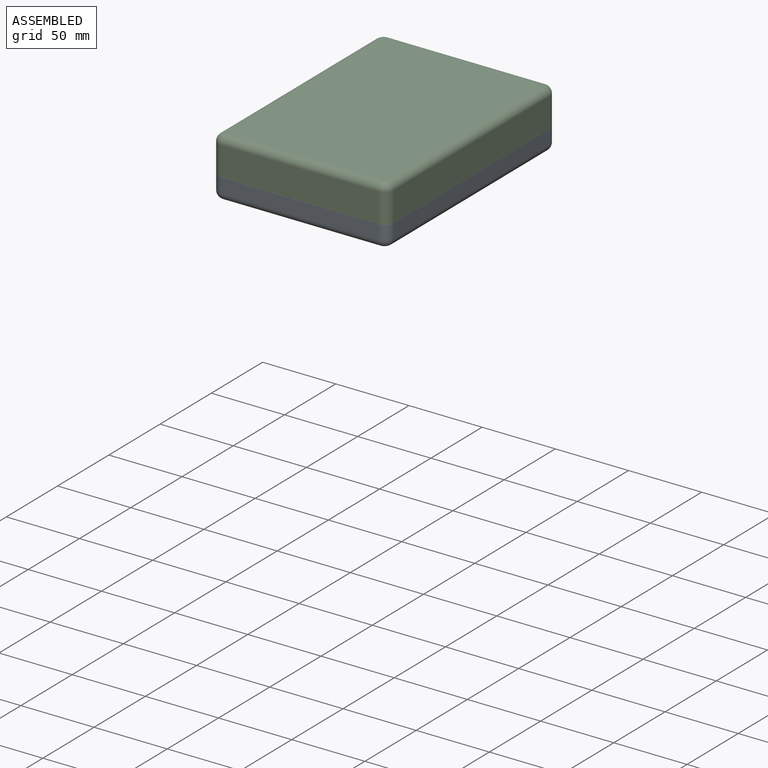
[diagram: assembled view]
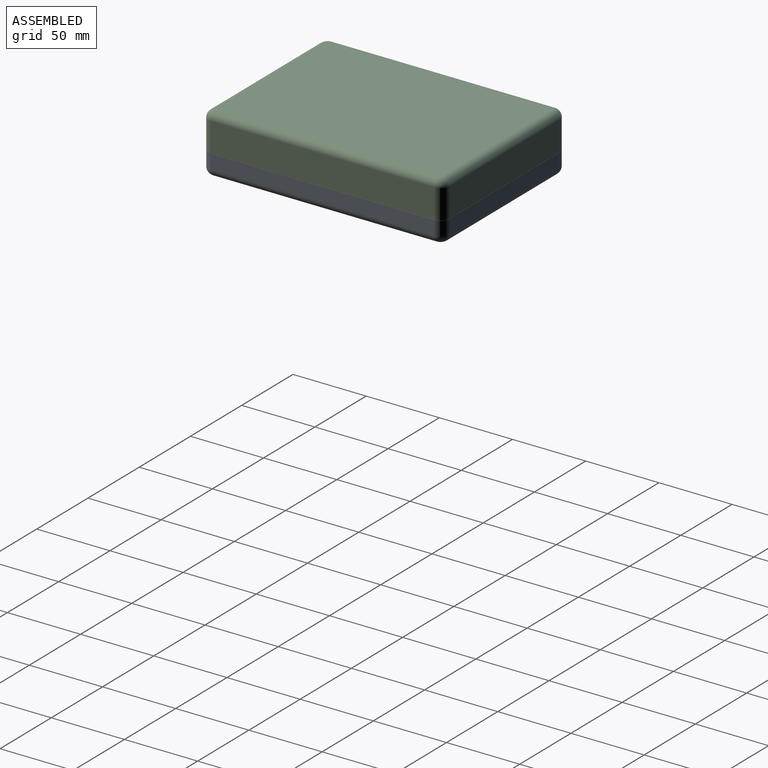
[diagram: assembled view, second angle]
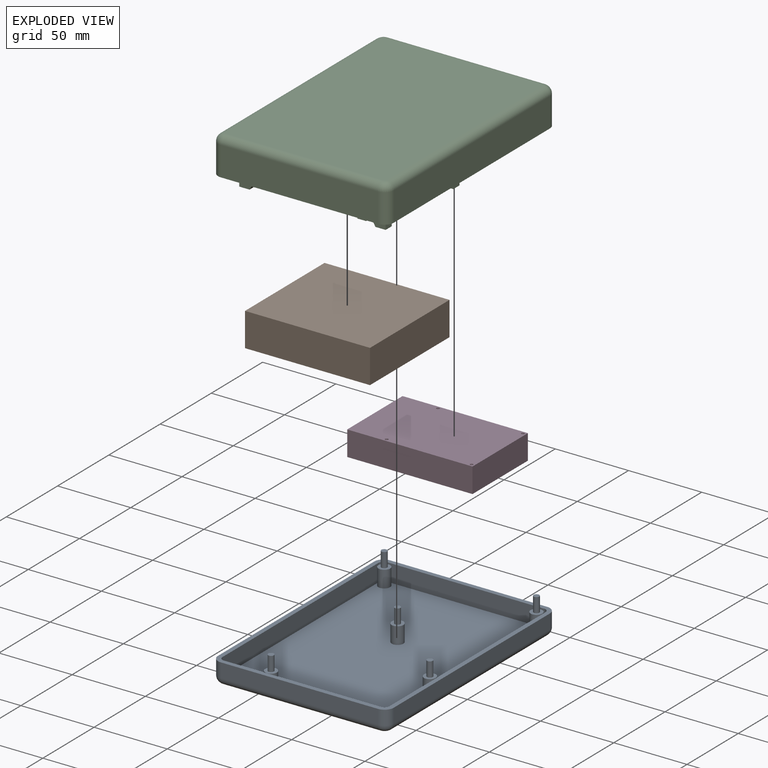
[diagram: exploded view]
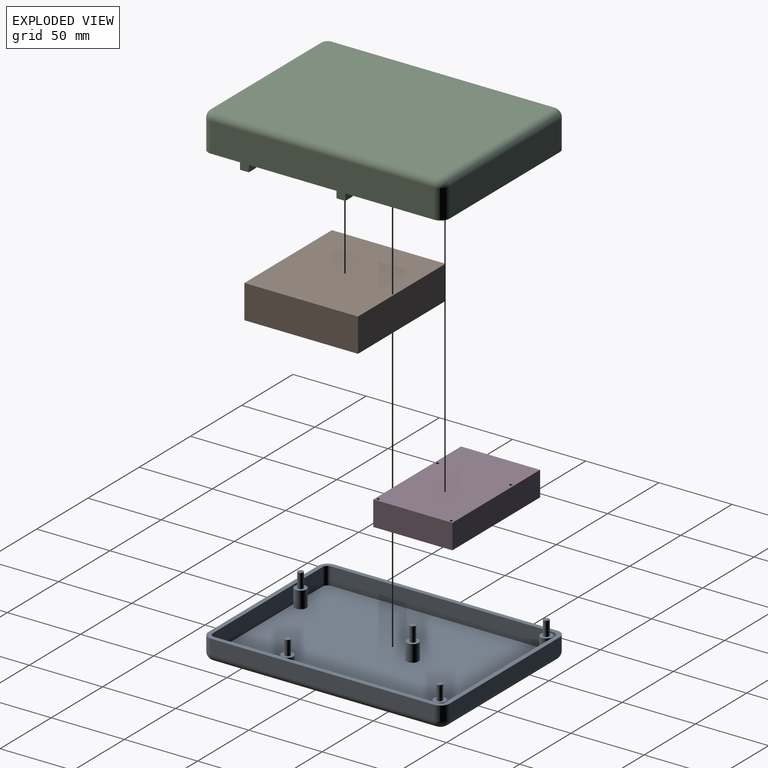
[diagram: exploded view, second angle]
ASSEMBLY  parts=4 mates=6
PART A: 47 faces, bbox 165x120x24.5 mm
  f0: plane 107.3x9.92mm, normal (1,0,0), area 1064.4mm2, adj f1,f7,f8,f25
  f1: cylinder r=6.35mm len=9.92mm, axis (0,0,-1), area 98.9mm2, adj f0,f2,f8,f23
  f2: plane 152.3x9.92mm, normal (0,1,0), area 1510.8mm2, adj f1,f3,f8,f21
  f3: cylinder r=6.35mm len=9.92mm, axis (0,0,-1), area 98.9mm2, adj f2,f4,f8,f19
  f4: plane 107.3x9.92mm, normal (-1,0,0), area 1064.4mm2, adj f3,f5,f8,f20
  f5: cylinder r=6.35mm len=9.92mm, axis (0,0,-1), area 98.9mm2, adj f4,f6,f8,f22
  f6: plane 152.3x9.92mm, normal (0,-1,0), area 1510.8mm2, adj f5,f7,f8,f24
  f7: cylinder r=6.35mm len=9.92mm, axis (0,0,-1), area 98.9mm2, adj f0,f6,f8,f26
  f8: plane 165x120mm, normal (0,0,1), area 1649mm2, adj f0,f1,f2,f3,f4,f5,f6,f7
  f9: plane 154.84x109.84mm, normal (0,0,-1), area 17006.2mm2, adj f19,f20,f21,f22,f23,f24,f25,f26
  f10: plane 107.3x12mm, normal (-1,0,0), area 1287.6mm2, adj f8,f11,f17,f18
  f11: cylinder r=3.35mm len=12mm, axis (0,0,-1), area 63.1mm2, adj f8,f10,f12,f18
  f12: plane 152.3x12mm, normal (0,-1,0), area 1827.6mm2, adj f8,f11,f13,f18
  f13: cylinder r=3.35mm len=12mm, axis (0,0,-1), area 63.1mm2, adj f8,f12,f14,f18
  f14: plane 107.3x12mm, normal (1,0,0), area 1287.6mm2, adj f8,f13,f15,f18
  f15: cylinder r=3.35mm len=12mm, axis (0,0,-1), area 63.1mm2, adj f8,f14,f16,f18
  f16: plane 152.3x12mm, normal (0,1,0), area 1827.6mm2, adj f8,f15,f17,f18
  f17: cylinder r=3.35mm len=12mm, axis (0,0,-1), area 63.1mm2, adj f8,f10,f16,f18
  f18: plane 159x114mm, normal (0,0,1), area 17865mm2, adj f10,f11,f12,f13,f14,f15,f16,f17
  f19: torus R=1.27mm, axis (0,0,1), area 56.5mm2, adj f3,f9,f20,f21
  f20: cylinder r=5.08mm len=107.3mm, axis (0,-1,0), area 856.2mm2, adj f4,f9,f19,f22
  f21: cylinder r=5.08mm len=152.3mm, axis (-1,0,0), area 1215.3mm2, adj f2,f9,f19,f23
  f22: torus R=1.27mm, axis (0,0,1), area 56.5mm2, adj f5,f9,f20,f24
  f23: torus R=1.27mm, axis (0,0,1), area 56.5mm2, adj f1,f9,f21,f25
  f24: cylinder r=5.08mm len=152.3mm, axis (1,0,0), area 1215.3mm2, adj f6,f9,f22,f26
  f25: cylinder r=5.08mm len=107.3mm, axis (0,1,0), area 856.2mm2, adj f0,f9,f23,f26
  f26: torus R=1.27mm, axis (0,0,1), area 56.5mm2, adj f7,f9,f24,f25
  f27: cylinder r=4mm len=11.5mm, axis (0,0,-1), area 289mm2, adj f18,f28
  f28: plane 8x8mm, normal (0,0,1), area 38.3mm2, adj f27,f37
  f29: cylinder r=4mm len=11.5mm, axis (0,0,-1), area 289mm2, adj f18,f30
  f30: plane 8x8mm, normal (0,0,1), area 38.3mm2, adj f29,f41
  f31: cylinder r=4mm len=11.5mm, axis (0,0,-1), area 289mm2, adj f18,f32
  f32: plane 8x8mm, normal (0,0,1), area 38.3mm2, adj f31,f39
  f33: cylinder r=4mm len=11.5mm, axis (0,0,-1), area 289mm2, adj f18,f34
  f34: plane 8x8mm, normal (0,0,1), area 38.3mm2, adj f33,f45
  f35: cylinder r=4mm len=11.5mm, axis (0,0,-1), area 289mm2, adj f18,f36
  f36: plane 8x8mm, normal (0,0,1), area 38.3mm2, adj f35,f43
  f37: cylinder r=1.95mm len=10mm, axis (0,0,-1), area 122.5mm2, adj f28,f38
  f38: plane 3.9x3.9mm, normal (0,0,1), area 11.9mm2, adj f37
  f39: cylinder r=1.95mm len=10mm, axis (0,0,-1), area 122.5mm2, adj f32,f40
  f40: plane 3.9x3.9mm, normal (0,0,1), area 11.9mm2, adj f39
  f41: cylinder r=1.95mm len=10mm, axis (0,0,-1), area 122.5mm2, adj f30,f42
  f42: plane 3.9x3.9mm, normal (0,0,1), area 11.9mm2, adj f41
  f43: cylinder r=1.95mm len=10mm, axis (0,0,-1), area 122.5mm2, adj f36,f44
  f44: plane 3.9x3.9mm, normal (0,0,1), area 11.9mm2, adj f43
  f45: cylinder r=1.95mm len=10mm, axis (0,0,-1), area 122.5mm2, adj f34,f46
  f46: plane 3.9x3.9mm, normal (0,0,1), area 11.9mm2, adj f45
PART B: 6 faces, bbox 77.6x85.4x23 mm
  f0: plane 85.4x23mm, normal (-1,0,0), area 1964.2mm2, adj f1,f3,f4,f5
  f1: plane 77.6x23mm, normal (0,-1,0), area 1784.8mm2, adj f0,f2,f4,f5
  f2: plane 85.4x23mm, normal (1,0,0), area 1964.2mm2, adj f1,f3,f4,f5
  f3: plane 77.6x23mm, normal (0,1,0), area 1784.8mm2, adj f0,f2,f4,f5
  f4: plane 85.4x77.6mm, normal (0,0,1), area 6627mm2, adj f0,f1,f2,f3
  f5: plane 85.4x77.6mm, normal (0,0,-1), area 6627mm2, adj f0,f1,f2,f3
PART C: 147 faces, bbox 165x120x37 mm
  f0: plane 159x114mm, normal (0,0,1), area 15865mm2, adj f17,f18,f19,f20,f21,f22,f23,f24
  f1: plane 20x20mm, normal (0,0,1), area 340mm2, adj f33,f34,f35,f36,f52,f53,f54,f82
  f2: plane 6x4mm, normal (0,0,-1), area 24mm2, adj f74,f79,f80,f81
  f3: plane 6x4mm, normal (0,0,-1), area 24mm2, adj f66,f71,f72,f73
  f4: plane 20x20mm, normal (0,0,1), area 340mm2, adj f37,f38,f39,f40,f48,f49,f50,f66
  f5: plane 20x20mm, normal (0,0,1), area 340mm2, adj f29,f30,f31,f32,f45,f46,f47,f56
  f6: plane 20x20mm, normal (0,0,1), area 340mm2, adj f25,f26,f27,f28,f41,f42,f43,f74
  f7: plane 165x120mm, normal (0,0,1), area 1649mm2, adj f8,f9,f10,f11,f12,f13,f14,f15
  f8: plane 107.3x20mm, normal (-1,0,0), area 2146mm2, adj f7,f9,f15,f142
  f9: cylinder r=6.35mm len=20mm, axis (0,0,-1), area 199.5mm2, adj f7,f8,f10,f140
  f10: plane 152.3x20mm, normal (0,-1,0), area 3046mm2, adj f7,f9,f11,f139
  f11: cylinder r=6.35mm len=20mm, axis (0,0,-1), area 199.5mm2, adj f7,f10,f12,f141
  f12: plane 107.3x20mm, normal (1,0,0), area 2146mm2, adj f7,f11,f13,f143
  f13: cylinder r=6.35mm len=20mm, axis (0,0,-1), area 199.5mm2, adj f7,f12,f14,f145
  f14: plane 152.3x20mm, normal (0,1,0), area 3046mm2, adj f7,f13,f15,f146
  f15: cylinder r=6.35mm len=20mm, axis (0,0,-1), area 199.5mm2, adj f7,f8,f14,f144
  f16: plane 155x110mm, normal (0,0,-1), area 17048.4mm2, adj f139,f140,f141,f142,f143,f144,f145,f146
  f17: plane 107.3x22mm, normal (1,0,0), area 2360.6mm2, adj f0,f7,f18,f24
  f18: cylinder r=3.35mm len=22mm, axis (0,0,-1), area 115.8mm2, adj f0,f7,f17,f19
  f19: plane 152.3x22mm, normal (0,1,0), area 3350.6mm2, adj f0,f7,f18,f20
  f20: cylinder r=3.35mm len=22mm, axis (0,0,-1), area 115.8mm2, adj f0,f7,f19,f21
  f21: plane 107.3x22mm, normal (-1,0,0), area 2360.6mm2, adj f0,f7,f20,f22
  f22: cylinder r=3.35mm len=22mm, axis (0,0,-1), area 115.8mm2, adj f0,f7,f21,f23
  f23: plane 152.3x22mm, normal (0,-1,0), area 3350.6mm2, adj f0,f7,f22,f24
  f24: cylinder r=3.35mm len=22mm, axis (0,0,-1), area 115.8mm2, adj f0,f7,f17,f23
  f25: plane 27x20mm, normal (1,0,0), area 218mm2, adj f0,f6,f26,f28,f41,f43,f44
  f26: plane 20x4mm, normal (0,1,0), area 80mm2, adj f0,f6,f25,f27
  f27: plane 20x4mm, normal (-1,0,0), area 80mm2, adj f0,f6,f26,f28
  f28: plane 20x4mm, normal (0,-1,0), area 80mm2, adj f0,f6,f25,f27
  f29: plane 20x4mm, normal (0,-1,0), area 80mm2, adj f0,f5,f30,f32
  f30: plane 20x4mm, normal (1,0,0), area 80mm2, adj f0,f5,f29,f31
  f31: plane 20x4mm, normal (0,1,0), area 80mm2, adj f0,f5,f30,f32
  f32: plane 27x20mm, normal (-1,0,0), area 218mm2, adj f0,f5,f29,f31,f45,f47,f65
  f33: plane 20x4mm, normal (0,-1,0), area 80mm2, adj f0,f1,f34,f36
  f34: plane 27x20mm, normal (1,0,0), area 218mm2, adj f0,f1,f33,f35,f52,f54,f55
  f35: plane 20x4mm, normal (0,1,0), area 80mm2, adj f0,f1,f34,f36
  f36: plane 20x4mm, normal (-1,0,0), area 80mm2, adj f0,f1,f33,f35
  f37: plane 27x20mm, normal (-1,0,0), area 218mm2, adj f0,f4,f38,f40,f48,f50,f51
  f38: plane 20x4mm, normal (0,-1,0), area 80mm2, adj f0,f4,f37,f39
  f39: plane 20x4mm, normal (1,0,0), area 80mm2, adj f0,f4,f38,f40
  f40: plane 20x4mm, normal (0,1,0), area 80mm2, adj f0,f4,f37,f39
  f41: plane 23x6mm, normal (0,1,0), area 138mm2, adj f6,f25,f42,f44
  f42: plane 23x6mm, normal (-1,0,0), area 138mm2, adj f6,f41,f43,f44
  f43: plane 23x6mm, normal (0,-1,0), area 138mm2, adj f6,f25,f42,f44
  f44: plane 6x6mm, normal (0,0,1), area 36mm2, adj f25,f41,f42,f43
  f45: plane 23x6mm, normal (0,-1,0), area 138mm2, adj f5,f32,f46,f65
  f46: plane 23x6mm, normal (1,0,0), area 138mm2, adj f5,f45,f47,f65
  f47: plane 23x6mm, normal (0,1,0), area 138mm2, adj f5,f32,f46,f65
  f48: plane 23x6mm, normal (0,-1,0), area 138mm2, adj f4,f37,f49,f51
  f49: plane 23x6mm, normal (1,0,0), area 138mm2, adj f4,f48,f50,f51
  f50: plane 23x6mm, normal (0,1,0), area 138mm2, adj f4,f37,f49,f51
  f51: plane 6x6mm, normal (0,0,1), area 36mm2, adj f37,f48,f49,f50
  f52: plane 23x6mm, normal (0,1,0), area 138mm2, adj f1,f34,f53,f55
  f53: plane 23x6mm, normal (-1,0,0), area 138mm2, adj f1,f52,f54,f55
  f54: plane 23x6mm, normal (0,-1,0), area 138mm2, adj f1,f34,f53,f55
  f55: plane 6x6mm, normal (0,0,1), area 36mm2, adj f34,f52,f53,f54
  f56: plane 6x3mm, normal (0,0.83,-0.55), area 21.6mm2, adj f5,f57,f63,f64
  f57: plane 27x6mm, normal (0,1,0), area 162mm2, adj f56,f58,f63,f64
  f58: plane 7x6mm, normal (0,0,1), area 42mm2, adj f57,f59,f63,f64
  f59: plane 6x5mm, normal (0,-0.86,0.51), area 35mm2, adj f58,f60,f63,f64
  f60: plane 6x2mm, normal (0,-1,0), area 12mm2, adj f59,f61,f63,f64
  f61: plane 6x4mm, normal (0,0,-1), area 24mm2, adj f60,f62,f63,f64
  f62: plane 23x6mm, normal (0,-1,0), area 138mm2, adj f5,f61,f63,f64
  f63: plane 30x10mm, normal (1,0,0), area 197.5mm2, adj f5,f56,f57,f58,f59,f60,f61,f62
  f64: plane 30x10mm, normal (-1,0,0), area 197.5mm2, adj f5,f56,f57,f58,f59,f60,f61,f62
  f65: plane 6x6mm, normal (0,0,1), area 36mm2, adj f32,f45,f46,f47
  f66: plane 23x6mm, normal (0,1,0), area 138mm2, adj f3,f4,f72,f73
  f67: plane 6x3mm, normal (0,-0.83,-0.55), area 21.6mm2, adj f4,f68,f72,f73
  f68: plane 27x6mm, normal (0,-1,0), area 162mm2, adj f67,f69,f72,f73
  f69: plane 7x6mm, normal (0,0,1), area 42mm2, adj f68,f70,f72,f73
  f70: plane 6x5mm, normal (0,0.86,0.51), area 35mm2, adj f69,f71,f72,f73
  f71: plane 6x2mm, normal (0,1,0), area 12mm2, adj f3,f70,f72,f73
  f72: plane 30x10mm, normal (1,0,0), area 197.5mm2, adj f3,f4,f66,f67,f68,f69,f70,f71
  f73: plane 30x10mm, normal (-1,0,0), area 197.5mm2, adj f3,f4,f66,f67,f68,f69,f70,f71
  f74: plane 23x6mm, normal (0,-1,0), area 138mm2, adj f2,f6,f80,f81
  f75: plane 6x3mm, normal (0,0.83,-0.55), area 21.6mm2, adj f6,f76,f80,f81
  f76: plane 27x6mm, normal (0,1,0), area 162mm2, adj f75,f77,f80,f81
  f77: plane 7x6mm, normal (0,0,1), area 42mm2, adj f76,f78,f80,f81
  f78: plane 6x5mm, normal (0,-0.86,0.51), area 35mm2, adj f77,f79,f80,f81
  f79: plane 6x2mm, normal (0,-1,0), area 12mm2, adj f2,f78,f80,f81
  f80: plane 30x10mm, normal (-1,0,0), area 197.5mm2, adj f2,f6,f74,f75,f76,f77,f78,f79
  f81: plane 30x10mm, normal (1,0,0), area 197.5mm2, adj f2,f6,f74,f75,f76,f77,f78,f79
  f82: plane 6x3mm, normal (0,-0.83,-0.55), area 21.6mm2, adj f1,f83,f89,f90
  f83: plane 27x6mm, normal (0,-1,0), area 162mm2, adj f82,f84,f89,f90
  f84: plane 7x6mm, normal (0,0,1), area 42mm2, adj f83,f85,f89,f90
  f85: plane 6x5mm, normal (0,0.86,0.51), area 35mm2, adj f84,f86,f89,f90
  f86: plane 6x2mm, normal (0,1,0), area 12mm2, adj f85,f87,f89,f90
  f87: plane 6x4mm, normal (0,0,-1), area 24mm2, adj f86,f88,f89,f90
  f88: plane 23x6mm, normal (0,1,0), area 138mm2, adj f1,f87,f89,f90
  f89: plane 30x10mm, normal (1,0,0), area 197.5mm2, adj f1,f82,f83,f84,f85,f86,f87,f88
  f90: plane 30x10mm, normal (-1,0,0), area 197.5mm2, adj f1,f82,f83,f84,f85,f86,f87,f88
  f91: cylinder r=4mm len=22mm, axis (0,0,1), area 552.9mm2, adj f0,f92
  f92: plane 8x8mm, normal (0,0,1), area 37.7mm2, adj f91,f108
  f93: cylinder r=4mm len=22mm, axis (0,0,1), area 552.9mm2, adj f0,f94
  f94: plane 8x8mm, normal (0,0,1), area 37.7mm2, adj f93,f110
  f95: cylinder r=4mm len=22mm, axis (0,0,1), area 552.9mm2, adj f0,f96
  f96: plane 8x8mm, normal (0,0,1), area 37.7mm2, adj f95,f102
  f97: cylinder r=4mm len=22mm, axis (0,0,1), area 552.9mm2, adj f0,f98
  f98: plane 8x8mm, normal (0,0,1), area 37.7mm2, adj f97,f104
  f99: cylinder r=4mm len=22mm, axis (0,0,1), area 552.9mm2, adj f0,f100
  f100: plane 8x8mm, normal (0,0,1), area 37.7mm2, adj f99,f106
  f101: cone r=0mm half-angle=59deg, axis (0,0,1), area 14.7mm2, adj f102
  f102: cylinder r=2mm len=10mm, axis (0,0,1), area 125.7mm2, adj f96,f101
  f103: cone r=0mm half-angle=59deg, axis (0,0,1), area 14.7mm2, adj f104
  f104: cylinder r=2mm len=10mm, axis (0,0,1), area 125.7mm2, adj f98,f103
  f105: cone r=0mm half-angle=59deg, axis (0,0,1), area 14.7mm2, adj f106
  f106: cylinder r=2mm len=10mm, axis (0,0,1), area 125.7mm2, adj f100,f105
  f107: cone r=0mm half-angle=59deg, axis (0,0,1), area 14.7mm2, adj f108
  f108: cylinder r=2mm len=10mm, axis (0,0,1), area 125.7mm2, adj f92,f107
  f109: cone r=0mm half-angle=59deg, axis (0,0,1), area 14.7mm2, adj f110
  f110: cylinder r=2mm len=10mm, axis (0,0,1), area 125.7mm2, adj f94,f109
  f111: plane 10x7mm, normal (0,1,0), area 70mm2, adj f0,f112,f114,f115
  f112: plane 10x7mm, normal (-1,0,0), area 70mm2, adj f0,f111,f113,f115
  f113: plane 10x7mm, normal (0,-1,0), area 70mm2, adj f0,f112,f114,f115
  f114: plane 10x7mm, normal (1,0,0), area 70mm2, adj f0,f111,f113,f115
  f115: plane 10x10mm, normal (0,0,1), area 97.2mm2, adj f111,f112,f113,f114,f131
  f116: plane 10x7mm, normal (1,0,0), area 70mm2, adj f0,f117,f119,f120
  f117: plane 10x7mm, normal (0,1,0), area 70mm2, adj f0,f116,f118,f120
  f118: plane 10x7mm, normal (-1,0,0), area 70mm2, adj f0,f117,f119,f120
  f119: plane 10x7mm, normal (0,-1,0), area 70mm2, adj f0,f116,f118,f120
  f120: plane 10x10mm, normal (0,0,1), area 97.2mm2, adj f116,f117,f118,f119,f137
  f121: plane 10x7mm, normal (-1,0,0), area 70mm2, adj f0,f122,f124,f125
  f122: plane 10x7mm, normal (0,-1,0), area 70mm2, adj f0,f121,f123,f125
  f123: plane 10x7mm, normal (1,0,0), area 70mm2, adj f0,f122,f124,f125
  f124: plane 10x7mm, normal (0,1,0), area 70mm2, adj f0,f121,f123,f125
  f125: plane 10x10mm, normal (0,0,1), area 97.2mm2, adj f121,f122,f123,f124,f133
  f126: plane 10x7mm, normal (0,-1,0), area 70mm2, adj f0,f127,f129,f130
  f127: plane 10x7mm, normal (1,0,0), area 70mm2, adj f0,f126,f128,f130
  f128: plane 10x7mm, normal (0,1,0), area 70mm2, adj f0,f127,f129,f130
  f129: plane 10x7mm, normal (-1,0,0), area 70mm2, adj f0,f126,f128,f130
  f130: plane 10x10mm, normal (0,0,1), area 97.2mm2, adj f126,f127,f128,f129,f135
  f131: cylinder r=0.95mm len=5mm, axis (0,0,-1), area 29.8mm2, adj f115,f132
  f132: plane 1.9x1.9mm, normal (0,0,1), area 2.8mm2, adj f131
  f133: cylinder r=0.95mm len=5mm, axis (0,0,-1), area 29.8mm2, adj f125,f134
  f134: plane 1.9x1.9mm, normal (0,0,1), area 2.8mm2, adj f133
  f135: cylinder r=0.95mm len=5mm, axis (0,0,-1), area 29.8mm2, adj f130,f136
  f136: plane 1.9x1.9mm, normal (0,0,1), area 2.8mm2, adj f135
  f137: cylinder r=0.95mm len=5mm, axis (0,0,-1), area 29.8mm2, adj f120,f138
  f138: plane 1.9x1.9mm, normal (0,0,1), area 2.8mm2, adj f137
  f139: cylinder r=5mm len=152.3mm, axis (1,0,0), area 1196.2mm2, adj f10,f16,f140,f141
  f140: torus R=1.35mm, axis (0,0,1), area 55.9mm2, adj f9,f16,f139,f142
  f141: torus R=1.35mm, axis (0,0,1), area 55.9mm2, adj f11,f16,f139,f143
  f142: cylinder r=5mm len=107.3mm, axis (0,-1,0), area 842.7mm2, adj f8,f16,f140,f144
  f143: cylinder r=5mm len=107.3mm, axis (0,1,0), area 842.7mm2, adj f12,f16,f141,f145
  f144: torus R=1.35mm, axis (0,0,1), area 55.9mm2, adj f15,f16,f142,f146
  f145: torus R=1.35mm, axis (0,0,1), area 55.9mm2, adj f13,f16,f143,f146
  f146: cylinder r=5mm len=152.3mm, axis (-1,0,0), area 1196.2mm2, adj f14,f16,f144,f145
PART D: 10 faces, bbox 54x85.6x17 mm
  f0: plane 85.6x17mm, normal (-1,0,0), area 1455.2mm2, adj f1,f3,f4,f5
  f1: plane 54x17mm, normal (0,-1,0), area 918mm2, adj f0,f2,f4,f5
  f2: plane 85.6x17mm, normal (1,0,0), area 1455.2mm2, adj f1,f3,f4,f5
  f3: plane 54x17mm, normal (0,1,0), area 918mm2, adj f0,f2,f4,f5
  f4: plane 85.6x54mm, normal (0,0,1), area 4609.8mm2, adj f0,f1,f2,f3,f6,f7,f8,f9
  f5: plane 85.6x54mm, normal (0,0,-1), area 4609.8mm2, adj f0,f1,f2,f3,f6,f7,f8,f9
  f6: cylinder r=1mm len=17mm, axis (0,0,1), area 106.8mm2, adj f4,f5
  f7: cylinder r=1mm len=17mm, axis (0,0,1), area 106.8mm2, adj f4,f5
  f8: cylinder r=1mm len=17mm, axis (0,0,1), area 106.8mm2, adj f4,f5
  f9: cylinder r=1mm len=17mm, axis (0,0,1), area 106.8mm2, adj f4,f5
PLACE A rot(axis=(0,0,1),90deg) t=(49.6,212.53,-75.66)mm
PLACE B rot(axis=(0.71,0.71,0),180deg) t=(-12.15,214.16,-42.6)mm
PLACE C rot(axis=(-0.71,0.71,0),180deg) t=(36.98,228.08,-35.6)mm
PLACE D rot(axis=(0,0,1),90deg) t=(41.58,266.18,-62.6)mm
MATE planar B.f4 <-> C.f61  axis (0,0,-1) through (30.55,182,-65.6)mm
MATE planar D.f4 <-> C.f115  axis (0,0,1) through (36.02,262.2,-45.6)mm
MATE cylindrical A.f27 <-> C.f95  axis (0,0,-1) through (86.85,286.2,-61.16)mm
MATE planar B.f1 <-> C.f74  axis (-1,0,0) through (-12.15,182,-54.1)mm
MATE planar C.f42 <-> B.f0  axis (0,1,0) through (-8.15,143.2,-54.1)mm
MATE cylindrical D.f6 <-> C.f131  axis (0,0,-1) through (76.85,287.2,-62.6)mm
